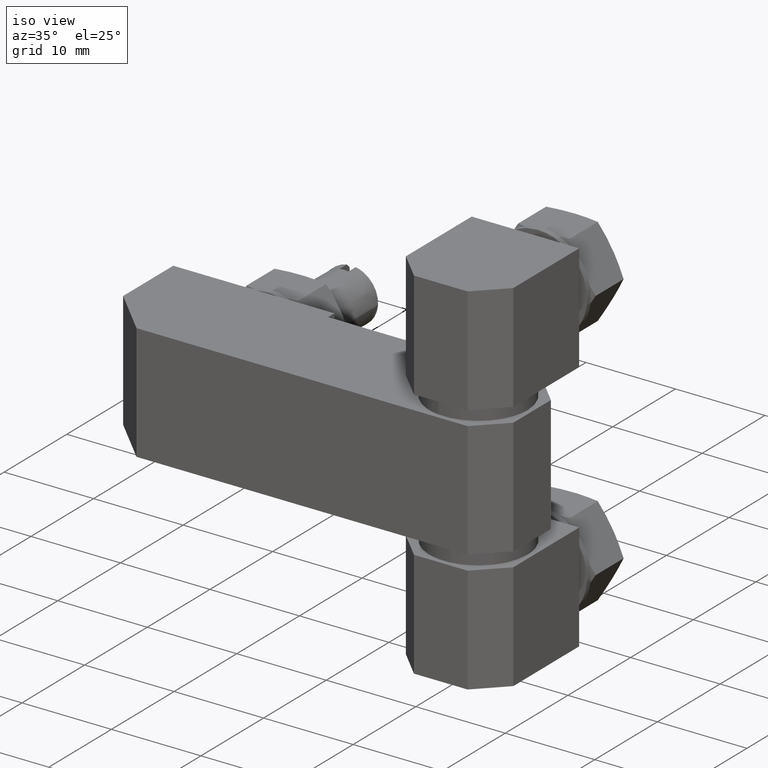
[diagram: clean part render]
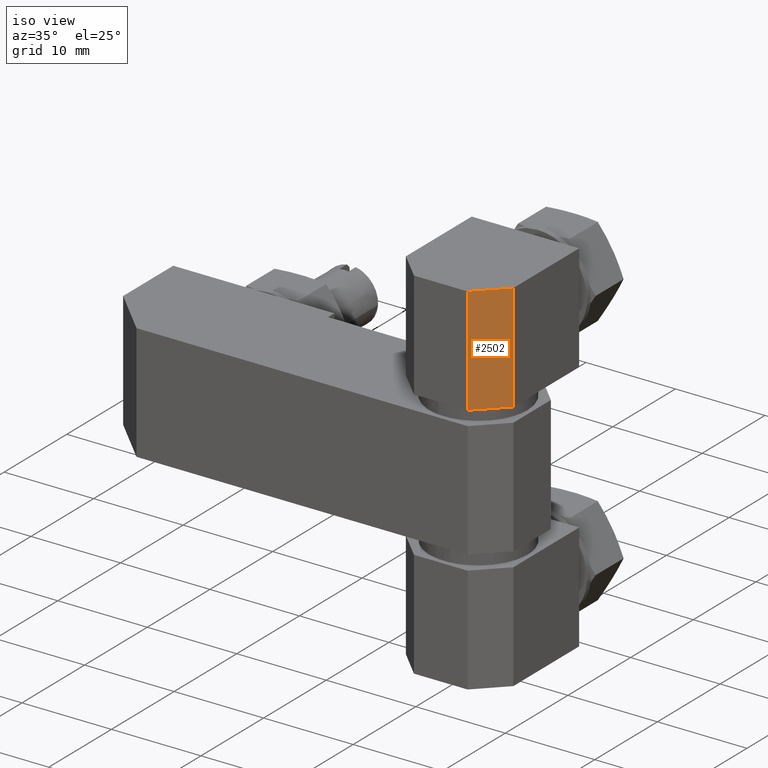
[diagram: same view with one face highlighted and labeled with its STEP entity id]
A machine part, iso view. The second image highlights one B-rep face of the part: STEP entity #2502.
In plain terms, the highlighted face is a freeform B-spline surface patch.
Its self-contained STEP definition (entity closure, byte-faithful):
#2338=CARTESIAN_POINT('',(-3.000000142492310,-6.000000641215610,0.0));
#2339=VERTEX_POINT('',#2338);
#2345=CARTESIAN_POINT('',(-6.000000284984710,-3.000000498723230,0.0));
#2346=VERTEX_POINT('',#2345);
#2347=CARTESIAN_POINT('',(-3.000000142492310,-6.000000641215610,0.0));
#2348=CARTESIAN_POINT('',(-6.000000284984710,-3.000000498723230,0.0));
#2349=QUASI_UNIFORM_CURVE('',1,(#2347,#2348),.UNSPECIFIED.,.F.,.U.);
#2350=EDGE_CURVE('',#2339,#2346,#2349,.T.);
#2465=CARTESIAN_POINT('',(-6.000000284984710,-3.000000498723230,12.000000569969300));
#2466=VERTEX_POINT('',#2465);
#2467=CARTESIAN_POINT('',(-6.000000284984710,-3.000000498723230,12.000000569969300));
#2468=CARTESIAN_POINT('',(-6.000000284984710,-3.000000498723230,0.0));
#2469=QUASI_UNIFORM_CURVE('',1,(#2467,#2468),.UNSPECIFIED.,.F.,.U.);
#2470=EDGE_CURVE('',#2466,#2346,#2469,.T.);
#2481=CARTESIAN_POINT('',(-6.149850388216932,-2.850150395491003,-0.599400005211637));
#2482=CARTESIAN_POINT('',(-2.850150280658908,-6.149850503049011,-0.599400005211637));
#2483=CARTESIAN_POINT('',(-6.149850388216932,-2.850150395491003,12.599400897046040));
#2484=CARTESIAN_POINT('',(-2.850150280658908,-6.149850503049011,12.599400897046040));
#2485=B_SPLINE_SURFACE_WITH_KNOTS('',1,1,((#2481,#2483),(#2482,#2484)),.UNSPECIFIED.,.F.,.F.,.U.,(2,2),(2,2),(0.0,4.666480643872506),(0.0,13.198800902257670),.UNSPECIFIED.);
#2486=ORIENTED_EDGE('',*,*,#2350,.F.);
#2487=CARTESIAN_POINT('',(-3.000000142492310,-6.000000641215610,12.000000569969300));
#2488=VERTEX_POINT('',#2487);
#2489=CARTESIAN_POINT('',(-3.000000142492310,-6.000000641215610,12.000000569969300));
#2490=CARTESIAN_POINT('',(-3.000000142492310,-6.000000641215610,0.0));
#2491=QUASI_UNIFORM_CURVE('',1,(#2489,#2490),.UNSPECIFIED.,.F.,.U.);
#2492=EDGE_CURVE('',#2488,#2339,#2491,.T.);
#2493=ORIENTED_EDGE('',*,*,#2492,.F.);
#2494=CARTESIAN_POINT('',(-3.000000142492310,-6.000000641215610,12.000000569969300));
#2495=CARTESIAN_POINT('',(-6.000000284984710,-3.000000498723230,12.000000569969300));
#2496=QUASI_UNIFORM_CURVE('',1,(#2494,#2495),.UNSPECIFIED.,.F.,.U.);
#2497=EDGE_CURVE('',#2488,#2466,#2496,.T.);
#2498=ORIENTED_EDGE('',*,*,#2497,.T.);
#2499=ORIENTED_EDGE('',*,*,#2470,.T.);
#2500=EDGE_LOOP('',(#2486,#2493,#2498,#2499));
#2501=FACE_OUTER_BOUND('',#2500,.T.);
#2502=ADVANCED_FACE('',(#2501),#2485,.T.);